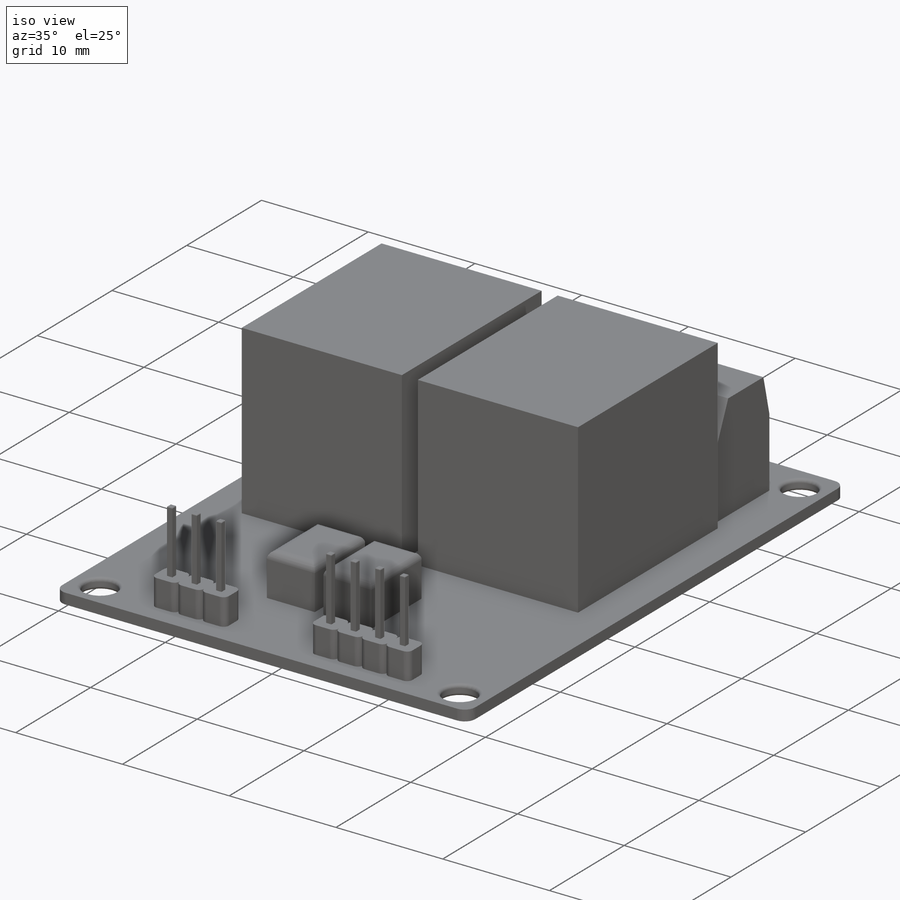
[diagram: iso view]
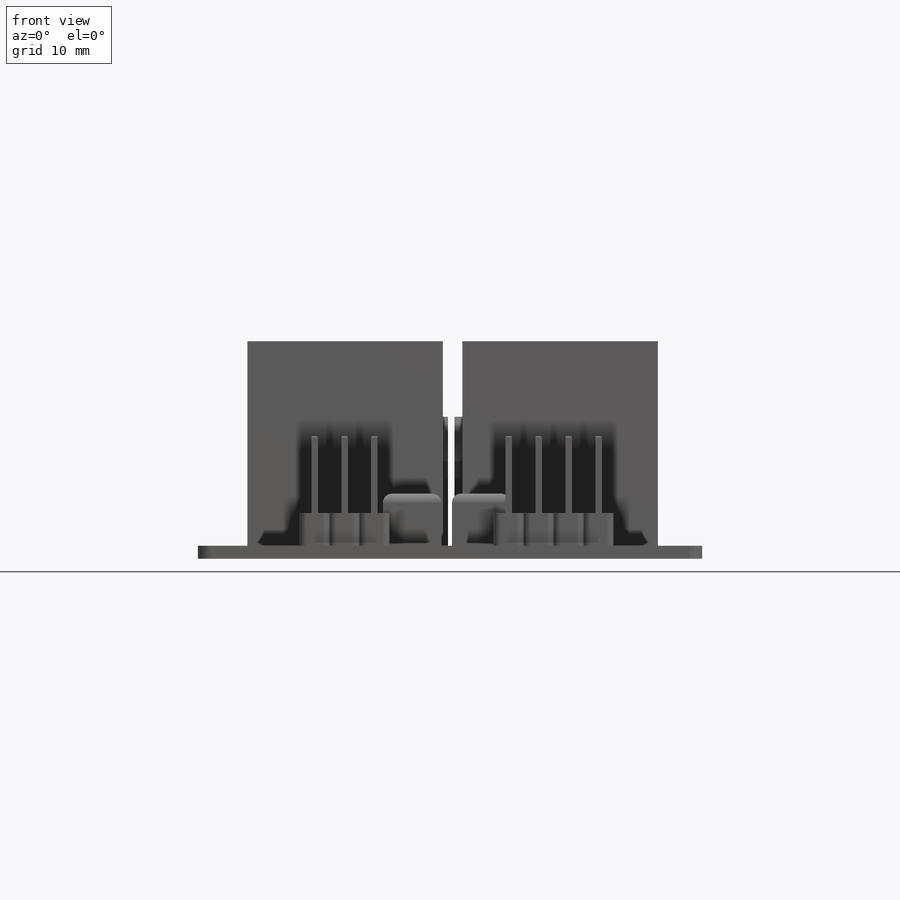
[diagram: front view]
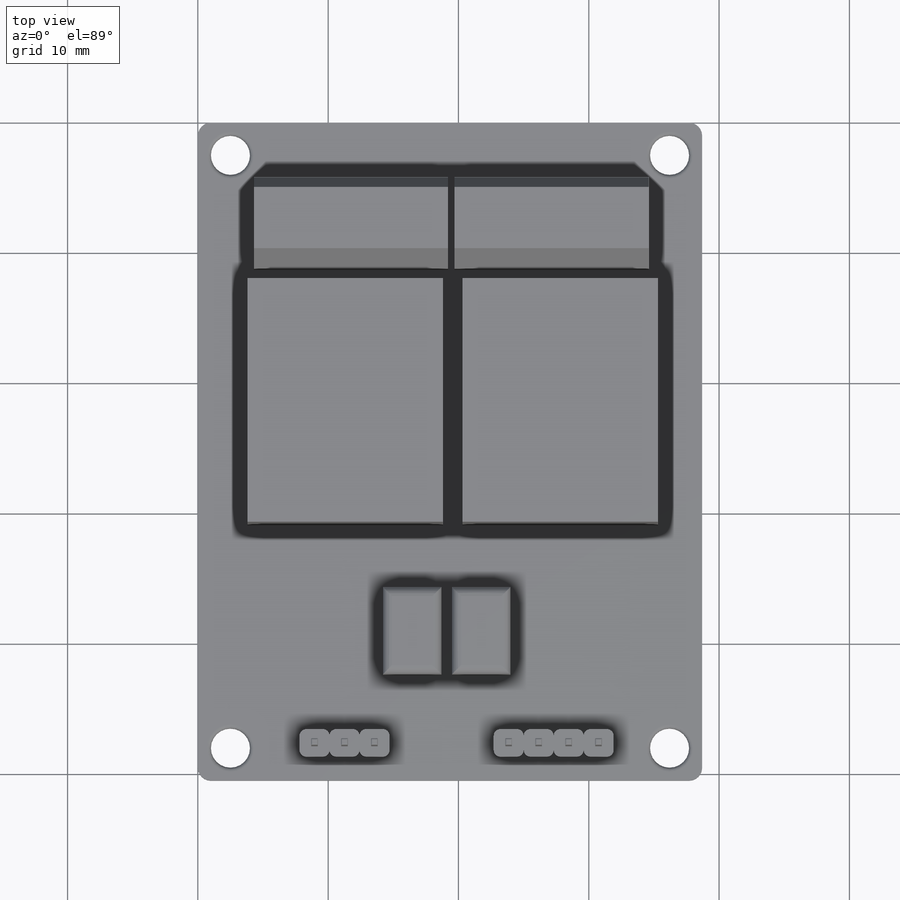
[diagram: top view]
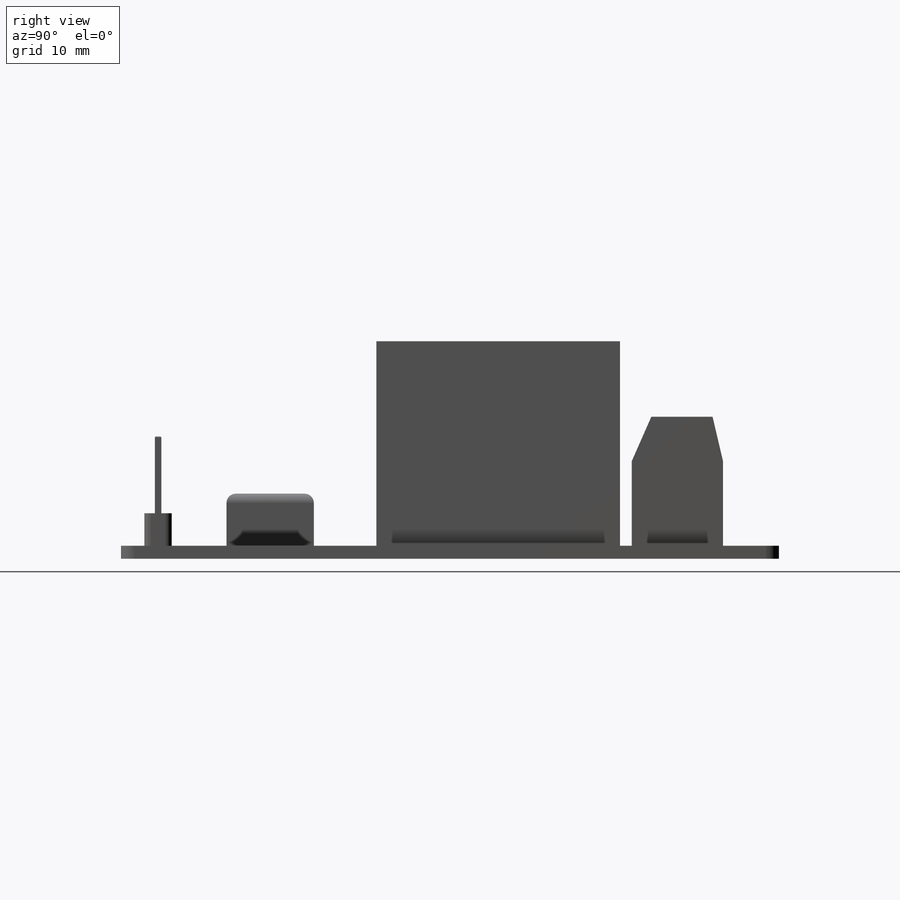
[diagram: right view]
SOLIDWORKS PART (.sldprt)
format: sldprt  version: not decoded by parser v0  size: 713,728 bytes
history: native  units: mm
features: sketch x13, extrude x11, fillet x11, plane x3, cut_extrude x2, material x1 (+9 scaffold rows collapsed)
feature tree (50):
  scaffold x9  (default folders/planes/origin — collapsed)
  material  "Material <sin especificar>"
  plane  "Alzado"
  plane  "Planta"
  plane  "Vista lateral"
  sketch  "Croquis1"  dims[D1=38.7mm D2=50.5mm]
  extrude  "Saliente-Extruir1"  Depth=1mm
  sketch  "Croquis2"  dims[D1=15.0mm D2=3.8mm D3=1.5mm D4=18.7mm D5=30.9mm]
  extrude  "Saliente-Extruir2"  Depth=15.7mm
  sketch  "Croquis3"  dims[D1=14.9mm D2=0.5mm D3=7.0mm D4=4.3mm D5=0.5mm]
  extrude  "Saliente-Extruir3"  Depth=9.9mm
  sketch  "Croquis4"  dims[D1=3.4mm D2=1.5mm D3=0.8mm]
  cut_extrude  "Cortar-Extruir1"  [1 undecoded]
  sketch  "Croquis5"  dims[D1=4.5mm D2=6.7mm D3=4.8mm D4=14.2mm D5=0.8mm]
  extrude  "Saliente-Extruir4"  Depth=4mm
  fillet  "Redondeo1"  Radius=0.7mm
  sketch  "Croquis6"  dims[c1.D1=2.1mm c1.D2=2.3mm c1.D3=2.1mm c1.D4=2.3mm c2.D3=6.8mm c2.D4=1.8mm c2.D5=7.8mm]
  extrude  "Saliente-Extruir5"  Depth=2.5mm
  fillet  "Redondeo2"  Radius=0.5mm
  extrude  "Saliente-Extruir6"  [1 undecoded]
  sketch  "Croquis6<3>"  dims[D1=2.5mm]
  fillet  "Redondeo4"  Radius=0.5mm
  extrude  "Saliente-Extruir7"  [1 undecoded]
  sketch  "Croquis6<4>"  dims[D1=2.5mm]
  fillet  "Redondeo5"  Radius=0.5mm
  extrude  "Saliente-Extruir8"  [1 undecoded]
  sketch  "Croquis6<5>"  dims[D1=2.5mm]
  fillet  "Redondeo6"  Radius=0.5mm
  extrude  "Saliente-Extruir9"  [1 undecoded]
  sketch  "Croquis6<6>"  dims[D1=2.5mm]
  fillet  "Redondeo7"  Radius=0.5mm
  extrude  "Saliente-Extruir10"  [1 undecoded]
  sketch  "Croquis6<7>"  dims[D1=2.5mm]
  fillet  "Redondeo8"  Radius=0.5mm
  sketch  "Croquis8"  dims[D1=0.5mm D2=0.25mm D3=0.25mm D4=0.25mm D5=0.25mm D6=0.25mm D7=0.25mm D8=0.25mm D9=0.25mm]
  extrude  "Saliente-Extruir11"  Depth=5.9mm
  fillet  "Redondeo13"  Radius=0.1mm
  fillet  "Redondeo14"  Radius=1mm
  fillet  "Redondeo15"  Radius=1mm
  sketch  "Croquis9"  dims[c1.D1=3.0mm c1.D5=3.0mm c1.D2=2.5mm c1.D3=2.5mm c1.D4=2.5mm c2.D5=2.5mm]
  cut_extrude  "Cortar-Extruir2"  Depth=5.9mm
  fillet  "Redondeo16"  Radius=0.3mm
decode coverage: 31 of 37 modeling features carry decoded parameters
note: 6 parameter values undecoded
summary: no parameter record found for 6 features
note: suppression state not decoded; provenance and decode notes live in map.json
